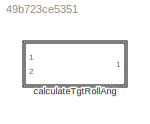
MODEL slx_49b723ce5351
KIND library
CONFIG AbsTol = auto
CONFIG EnableMultiTasking = off
CONFIG FixedStep = auto
CONFIG MaxStep = auto
CONFIG MinStep = auto
CONFIG RelTol = 1e-3
CONFIG SampleTimeConstraint = Unconstrained
CONFIG Solver = VariableStepAuto
CONFIG SolverName = VariableStepAuto
CONFIG StartTime = 0.0
CONFIG StopTime = 10.0
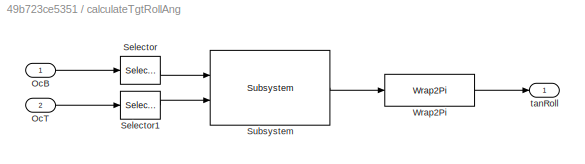
BLOCK [SubSystem] calculateTgtRollAng
  Ports = [2, 1]
  RequestExecContextInheritance = off
BLOCK [Inport] calculateTgtRollAng/OcB
BLOCK [Inport] calculateTgtRollAng/OcT
  Port = 2
BLOCK [Selector] calculateTgtRollAng/Selector
  IndexOptions = Index vector (dialog),Index vector (dialog)
  Indices = [1 2 3],2
  InputPortWidth = 3
  NumberOfDimensions = 2
  OutputSizes = 1,1
  Ports = [1, 1]
BLOCK [Selector] calculateTgtRollAng/Selector1
  IndexOptions = Index vector (dialog),Index vector (dialog)
  Indices = [1 2 3],3
  InputPortWidth = 3
  NumberOfDimensions = 2
  OutputSizes = 1,1
  Ports = [1, 1]
BLOCK [Reference] calculateTgtRollAng/Subsystem  REF=angleBtwVecs_ul/Subsystem
  Ports = [2, 1]
  SourceBlock = angleBtwVecs_ul/Subsystem
  SourceType = SubSystem
BLOCK [Reference] calculateTgtRollAng/Wrap2Pi  REF=wrapToPi_ul/Wrap2Pi
  Ports = [1, 1]
  SourceBlock = wrapToPi_ul/Wrap2Pi
BLOCK [Outport] calculateTgtRollAng/tanRoll
LINE calculateTgtRollAng/OcB:1 -> calculateTgtRollAng/Selector:1
LINE calculateTgtRollAng/OcT:1 -> calculateTgtRollAng/Selector1:1
LINE calculateTgtRollAng/Selector1:1 -> calculateTgtRollAng/Subsystem:2
LINE calculateTgtRollAng/Selector:1 -> calculateTgtRollAng/Subsystem:1
LINE calculateTgtRollAng/Subsystem:1 -> calculateTgtRollAng/Wrap2Pi:1
LINE calculateTgtRollAng/Wrap2Pi:1 -> calculateTgtRollAng/tanRoll:1
